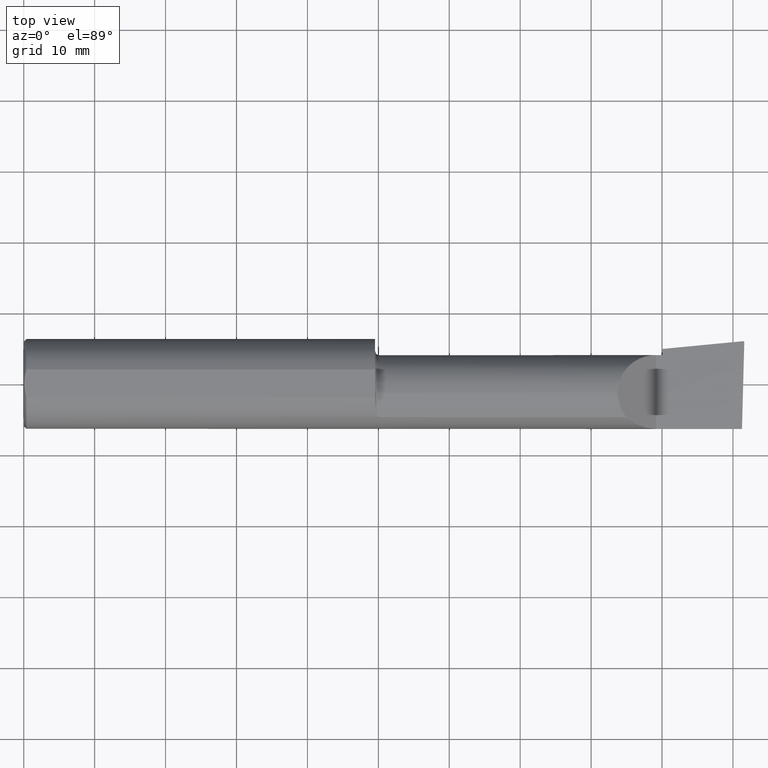
[diagram: clean part render]
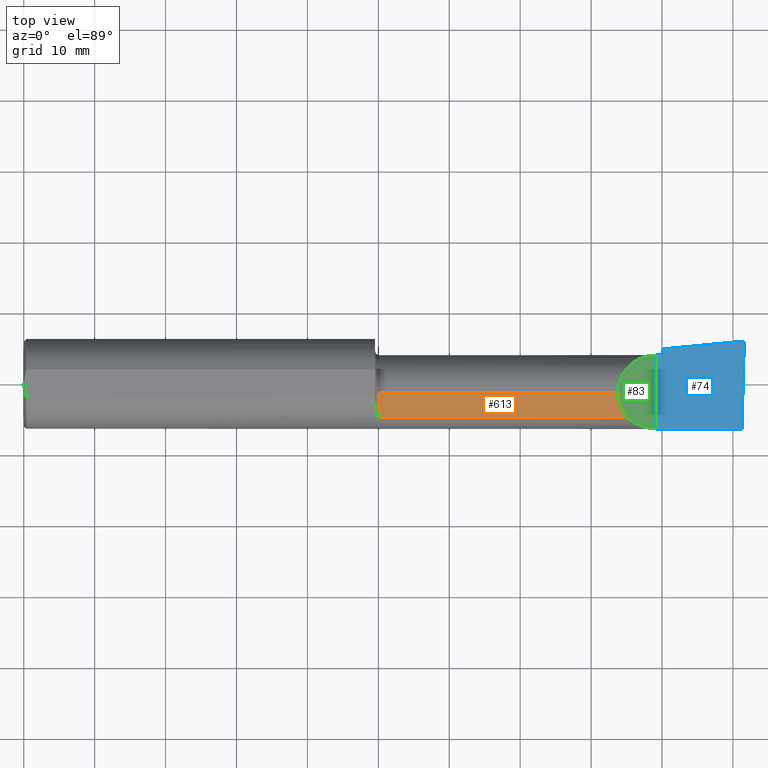
[diagram: same view with three faces highlighted in distinct colors, each labeled with its STEP entity id]
A machine part, top view with three faces highlighted in distinct colors.
Their STEP definitions:

[orange] entity #613 — the highlighted cylindrical surface (partial cylindrical patch) has radius 5.414 mm, axis along (-1, -0, -0).
#5 = CARTESIAN_POINT ( 'NONE',  ( 3.296849999999996061, -0.1021668565906576620, 0.2131499999999999229 ) ) ;
#14 = AXIS2_PLACEMENT_3D ( 'NONE', #620, #822, #345 ) ;
#33 = VERTEX_POINT ( 'NONE', #251 ) ;
#64 = CARTESIAN_POINT ( 'NONE',  ( 0.000000000000000000, -0.05299999999999998462, 0.2131499999999999506 ) ) ;
#75 = ORIENTED_EDGE ( 'NONE', *, *, #604, .F. ) ;
#140 = VECTOR ( 'NONE', #403, 39.37007874015748143 ) ;
#148 = DIRECTION ( 'NONE',  ( 0.000000000000000000, 0.000000000000000000, 1.000000000000000000 ) ) ;
#162 = ORIENTED_EDGE ( 'NONE', *, *, #337, .T. ) ;
#206 = VERTEX_POINT ( 'NONE', #731 ) ;
#232 = EDGE_LOOP ( 'NONE', ( #833, #420, #75, #162 ) ) ;
#251 = CARTESIAN_POINT ( 'NONE',  ( 1.975000000000000089, -0.05299999999999998462, 0.2131499999999997841 ) ) ;
#266 = CARTESIAN_POINT ( 'NONE',  ( 1.975000000000000089, -0.1868028301886799081, 0.1659208399614080509 ) ) ;
#270 = LINE ( 'NONE', #64, #140 ) ;
#278 = CARTESIAN_POINT ( 'NONE',  ( 3.296849999999997394, -0.05299999999999998462, 0.2131499999999999506 ) ) ;
#279 = VERTEX_POINT ( 'NONE', #266 ) ;
#285 = CARTESIAN_POINT ( 'NONE',  ( 1.975000000000000089, -0.05299999999999998462, 0.000000000000000000 ) ) ;
#317 = EDGE_CURVE ( 'NONE', #699, #33, #270, .T. ) ;
#337 = EDGE_CURVE ( 'NONE', #279, #206, #610, .T. ) ;
#341 = AXIS2_PLACEMENT_3D ( 'NONE', #285, #814, #148 ) ;
#345 = DIRECTION ( 'NONE',  ( 0.000000000000000000, 0.000000000000000000, 1.000000000000000000 ) ) ;
#386 = DIRECTION ( 'NONE',  ( 1.000000000000000000, 0.000000000000000000, 0.000000000000000000 ) ) ;
#403 = DIRECTION ( 'NONE',  ( -1.000000000000000000, -0.000000000000000000, -0.000000000000000000 ) ) ;
#418 = CIRCLE ( 'NONE', #341, 0.2131499999999997841 ) ;
#420 = ORIENTED_EDGE ( 'NONE', *, *, #317, .T. ) ;
#540 = CARTESIAN_POINT ( 'NONE',  ( 3.296849999999997394, -0.05299999999999998462, 0.2131499999999999506 ) ) ;
#556 = CYLINDRICAL_SURFACE ( 'NONE', #14, 0.2131499999999999506 ) ;
#571 = EDGE_CURVE ( 'NONE', #206, #699, #796, .T. ) ;
#604 = EDGE_CURVE ( 'NONE', #279, #33, #418, .T. ) ;
#607 = CARTESIAN_POINT ( 'NONE',  ( 3.344079160038590626, -0.1868028301886808795, 0.1659208399614073015 ) ) ;
#610 = LINE ( 'NONE', #782, #634 ) ;
#613 = ADVANCED_FACE ( 'NONE', ( #623 ), #556, .T. ) ;
#620 = CARTESIAN_POINT ( 'NONE',  ( 0.000000000000000000, -0.05299999999999998462, 0.000000000000000000 ) ) ;
#623 = FACE_OUTER_BOUND ( 'NONE', #232, .T. ) ;
#634 = VECTOR ( 'NONE', #386, 39.37007874015748143 ) ;
#661 = CARTESIAN_POINT ( 'NONE',  ( 3.313215146136122335, -0.1485302233682071760, 0.1967848538638751477 ) ) ;
#699 = VERTEX_POINT ( 'NONE', #278 ) ;
#731 = CARTESIAN_POINT ( 'NONE',  ( 3.344079160038590626, -0.1868028301886808795, 0.1659208399614073015 ) ) ;
#782 = CARTESIAN_POINT ( 'NONE',  ( 2.760000000000000231, -0.1868028301886794917, 0.1659208399614086338 ) ) ;
#796 =( BOUNDED_CURVE ( )  B_SPLINE_CURVE ( 3, ( #607, #661, #5, #540 ),
 .UNSPECIFIED., .F., .F. ) 
 B_SPLINE_CURVE_WITH_KNOTS ( ( 4, 4 ),
 ( 5.604538515477337945, 6.283185307179586232 ),
 .UNSPECIFIED. ) 
 CURVE ( )  GEOMETRIC_REPRESENTATION_ITEM ( )  RATIONAL_B_SPLINE_CURVE ( ( 1.000000000000000000, 0.9619867256453012994, 0.9619867256453012994, 1.000000000000000000 ) ) 
 REPRESENTATION_ITEM ( '' )  );
#814 = DIRECTION ( 'NONE',  ( -1.000000000000000000, -0.000000000000000000, -0.000000000000000000 ) ) ;
#822 = DIRECTION ( 'NONE',  ( -1.000000000000000000, -0.000000000000000000, -0.000000000000000000 ) ) ;
#833 = ORIENTED_EDGE ( 'NONE', *, *, #571, .T. ) ;

[blue] entity #74 — the highlighted planar face has unit normal (-0, 0, -1).
#4 = VECTOR ( 'NONE', #174, 39.37007874015748143 ) ;
#15 = CARTESIAN_POINT ( 'NONE',  ( 7.089685198749692867E-32, 0.1601499999999999313, 4.685946446163635703E-16 ) ) ;
#23 = CARTESIAN_POINT ( 'NONE',  ( 3.992906680581888690, 0.2374669910246689497, -1.355192034299833405E-16 ) ) ;
#39 = CARTESIAN_POINT ( 'NONE',  ( 4.000000000000000000, -0.2500000000000000555, -1.365923996832131609E-16 ) ) ;
#74 = ADVANCED_FACE ( 'NONE', ( #718 ), #321, .F. ) ;
#84 = CARTESIAN_POINT ( 'NONE',  ( 3.993108609909219009, 0.2374864346074007926, -1.365705356632281459E-16 ) ) ;
#86 = VERTEX_POINT ( 'NONE', #654 ) ;
#98 = VERTEX_POINT ( 'NONE', #585 ) ;
#108 = DIRECTION ( 'NONE',  ( -1.512967610748942321E-16, 0.000000000000000000, -1.000000000000000000 ) ) ;
#131 =( BOUNDED_CURVE ( )  B_SPLINE_CURVE ( 3, ( #867, #134, #469, #741 ),
 .UNSPECIFIED., .F., .F. ) 
 B_SPLINE_CURVE_WITH_KNOTS ( ( 4, 4 ),
 ( 1.953092279228448858, 3.511516179717750763 ),
 .UNSPECIFIED. ) 
 CURVE ( )  GEOMETRIC_REPRESENTATION_ITEM ( )  RATIONAL_B_SPLINE_CURVE ( ( 1.000000000000000000, 0.8076450242550308189, 0.8076450242550308189, 1.000000000000000000 ) ) 
 REPRESENTATION_ITEM ( '' )  );
#133 = CARTESIAN_POINT ( 'NONE',  ( 3.509999999999999787, 0.1601499999999999035, -6.245698675651499853E-17 ) ) ;
#134 = CARTESIAN_POINT ( 'NONE',  ( 3.999910038027500558, 0.2347144908750976589, -1.375995697082077329E-16 ) ) ;
#136 = EDGE_CURVE ( 'NONE', #155, #86, #131, .T. ) ;
#145 = EDGE_LOOP ( 'NONE', ( #431, #421, #628, #826, #290, #288, #765, #558 ) ) ;
#155 = VERTEX_POINT ( 'NONE', #183 ) ;
#174 = DIRECTION ( 'NONE',  ( 0.9953961983671787417, 0.09584575252022452252, -1.506002207992170530E-16 ) ) ;
#183 = CARTESIAN_POINT ( 'NONE',  ( 3.999806390372775411, 0.2307563466314205836, -1.365348382555914988E-16 ) ) ;
#184 = CARTESIAN_POINT ( 'NONE',  ( 3.987226101480002782, -0.2496655036952227513, -1.346597502108382365E-16 ) ) ;
#185 = VECTOR ( 'NONE', #367, 39.37007874015748143 ) ;
#194 = CARTESIAN_POINT ( 'NONE',  ( 3.987221270274236229, -0.2498499999999999888, -1.346590301211604859E-16 ) ) ;
#222 = CARTESIAN_POINT ( 'NONE',  ( 3.993310817358672438, 0.2374961668063717557, -1.366011289953956554E-16 ) ) ;
#234 = CARTESIAN_POINT ( 'NONE',  ( 3.544999999999999929, -0.2500000000000000555, -6.775237339413629936E-17 ) ) ;
#253 = DIRECTION ( 'NONE',  ( 0.02617694830786353177, 0.9996573249755575929, -3.901665791506465006E-18 ) ) ;
#283 = LINE ( 'NONE', #15, #759 ) ;
#288 = ORIENTED_EDGE ( 'NONE', *, *, #727, .F. ) ;
#290 = ORIENTED_EDGE ( 'NONE', *, *, #813, .F. ) ;
#295 = VERTEX_POINT ( 'NONE', #133 ) ;
#321 = PLANE ( 'NONE',  #611 ) ;
#367 = DIRECTION ( 'NONE',  ( -1.000000000000000000, -0.000000000000000000, -0.000000000000000000 ) ) ;
#373 = CARTESIAN_POINT ( 'NONE',  ( 7.089685198749692867E-32, -0.2498499999999999610, 4.685946446163635703E-16 ) ) ;
#405 = EDGE_CURVE ( 'NONE', #783, #753, #773, .T. ) ;
#414 = EDGE_CURVE ( 'NONE', #513, #155, #581, .T. ) ;
#419 = CARTESIAN_POINT ( 'NONE',  ( 3.993512870449309915, 0.2374961668063717279, -1.365923996832131609E-16 ) ) ;
#421 = ORIENTED_EDGE ( 'NONE', *, *, #136, .T. ) ;
#425 = CARTESIAN_POINT ( 'NONE',  ( 3.509999999999999787, -0.2500000000000000555, -6.245698675651499853E-17 ) ) ;
#431 = ORIENTED_EDGE ( 'NONE', *, *, #414, .T. ) ;
#439 = EDGE_CURVE ( 'NONE', #513, #823, #845, .T. ) ;
#450 = CARTESIAN_POINT ( 'NONE',  ( 0.9762916401177922365, -0.05299999999999998462, 3.208848816020454083E-16 ) ) ;
#469 = CARTESIAN_POINT ( 'NONE',  ( 3.997312560284819405, 0.2374961668063720333, -1.372065797387761951E-16 ) ) ;
#479 =( BOUNDED_CURVE ( )  B_SPLINE_CURVE ( 3, ( #419, #222, #84, #746 ),
 .UNSPECIFIED., .F., .T. ) 
 B_SPLINE_CURVE_WITH_KNOTS ( ( 4, 4 ),
 ( 3.511516179717750763, 3.604018710826266680 ),
 .UNSPECIFIED. ) 
 CURVE ( )  GEOMETRIC_REPRESENTATION_ITEM ( )  RATIONAL_B_SPLINE_CURVE ( ( 1.000000000000000000, 0.9992870672494020834, 0.9992870672494020834, 1.000000000000000000 ) ) 
 REPRESENTATION_ITEM ( '' )  );
#490 = LINE ( 'NONE', #425, #668 ) ;
#513 = VERTEX_POINT ( 'NONE', #194 ) ;
#545 = VECTOR ( 'NONE', #717, 39.37007874015748143 ) ;
#553 = DIRECTION ( 'NONE',  ( 1.000000000000000000, 0.000000000000000000, 0.000000000000000000 ) ) ;
#558 = ORIENTED_EDGE ( 'NONE', *, *, #439, .F. ) ;
#578 = LINE ( 'NONE', #234, #545 ) ;
#581 = LINE ( 'NONE', #184, #828 ) ;
#585 = CARTESIAN_POINT ( 'NONE',  ( 3.544999999999999929, 0.1601500000000001256, 4.685946446163640633E-16 ) ) ;
#611 = AXIS2_PLACEMENT_3D ( 'NONE', #39, #108, #857 ) ;
#627 = EDGE_CURVE ( 'NONE', #86, #753, #479, .T. ) ;
#628 = ORIENTED_EDGE ( 'NONE', *, *, #627, .T. ) ;
#652 = CARTESIAN_POINT ( 'NONE',  ( 3.544999999999999929, 0.1943384830701263555, 4.685947727122480717E-16 ) ) ;
#654 = CARTESIAN_POINT ( 'NONE',  ( 3.993512870449309915, 0.2374961668063717279, -1.365923996832131609E-16 ) ) ;
#668 = VECTOR ( 'NONE', #762, 39.37007874015748143 ) ;
#684 = EDGE_CURVE ( 'NONE', #823, #295, #490, .T. ) ;
#701 = CARTESIAN_POINT ( 'NONE',  ( 3.509999999999999787, -0.2498499999999999610, -6.245698675651499853E-17 ) ) ;
#717 = DIRECTION ( 'NONE',  ( 0.000000000000000000, 1.000000000000000000, 0.000000000000000000 ) ) ;
#718 = FACE_OUTER_BOUND ( 'NONE', #145, .T. ) ;
#727 = EDGE_CURVE ( 'NONE', #295, #98, #283, .T. ) ;
#741 = CARTESIAN_POINT ( 'NONE',  ( 3.993512870449309915, 0.2374961668063717279, -1.365923996832131609E-16 ) ) ;
#746 = CARTESIAN_POINT ( 'NONE',  ( 3.992906680581888690, 0.2374669910246689497, -1.355192034299833405E-16 ) ) ;
#753 = VERTEX_POINT ( 'NONE', #23 ) ;
#759 = VECTOR ( 'NONE', #553, 39.37007874015748143 ) ;
#762 = DIRECTION ( 'NONE',  ( -0.000000000000000000, 1.000000000000000000, -0.000000000000000000 ) ) ;
#765 = ORIENTED_EDGE ( 'NONE', *, *, #684, .F. ) ;
#773 = LINE ( 'NONE', #450, #4 ) ;
#783 = VERTEX_POINT ( 'NONE', #652 ) ;
#813 = EDGE_CURVE ( 'NONE', #98, #783, #578, .T. ) ;
#823 = VERTEX_POINT ( 'NONE', #701 ) ;
#826 = ORIENTED_EDGE ( 'NONE', *, *, #405, .F. ) ;
#828 = VECTOR ( 'NONE', #253, 39.37007874015748143 ) ;
#845 = LINE ( 'NONE', #373, #185 ) ;
#857 = DIRECTION ( 'NONE',  ( -1.000000000000000000, 0.000000000000000000, 1.512967610748942321E-16 ) ) ;
#867 = CARTESIAN_POINT ( 'NONE',  ( 3.999806390372775411, 0.2307563466314205836, -1.365348382555914988E-16 ) ) ;

[green] entity #83 — the highlighted planar face has unit normal (-0.7071, 0, -0.7071).
#5 = CARTESIAN_POINT ( 'NONE',  ( 3.296849999999996061, -0.1021668565906576620, 0.2131499999999999229 ) ) ;
#35 = CARTESIAN_POINT ( 'NONE',  ( 3.448145753305724259, -0.2498500000000001275, 0.06185424669427388999 ) ) ;
#82 = EDGE_LOOP ( 'NONE', ( #151, #500, #630, #844 ) ) ;
#83 = ADVANCED_FACE ( 'NONE', ( #115 ), #257, .F. ) ;
#115 = FACE_OUTER_BOUND ( 'NONE', #82, .T. ) ;
#133 = CARTESIAN_POINT ( 'NONE',  ( 3.509999999999999787, 0.1601499999999999035, -6.245698675651499853E-17 ) ) ;
#151 = ORIENTED_EDGE ( 'NONE', *, *, #571, .F. ) ;
#206 = VERTEX_POINT ( 'NONE', #731 ) ;
#228 = EDGE_CURVE ( 'NONE', #699, #295, #702, .T. ) ;
#257 = PLANE ( 'NONE',  #383 ) ;
#267 = CARTESIAN_POINT ( 'NONE',  ( 3.509999999999999787, 0.1601499999999999035, -6.245698675651499853E-17 ) ) ;
#278 = CARTESIAN_POINT ( 'NONE',  ( 3.296849999999997394, -0.05299999999999998462, 0.2131499999999999506 ) ) ;
#295 = VERTEX_POINT ( 'NONE', #133 ) ;
#316 = CARTESIAN_POINT ( 'NONE',  ( 3.509999999999999787, -0.2500000000000000555, -6.245698675651499853E-17 ) ) ;
#383 = AXIS2_PLACEMENT_3D ( 'NONE', #316, #455, #728 ) ;
#422 =( BOUNDED_CURVE ( )  B_SPLINE_CURVE ( 3, ( #645, #35, #839, #656 ),
 .UNSPECIFIED., .F., .F. ) 
 B_SPLINE_CURVE_WITH_KNOTS ( ( 4, 4 ),
 ( 4.712388980384687898, 5.438654041019563401 ),
 .UNSPECIFIED. ) 
 CURVE ( )  GEOMETRIC_REPRESENTATION_ITEM ( )  RATIONAL_B_SPLINE_CURVE ( ( 1.000000000000000000, 0.9565258159411005323, 0.9565258159411005323, 1.000000000000000000 ) ) 
 REPRESENTATION_ITEM ( '' )  );
#425 = CARTESIAN_POINT ( 'NONE',  ( 3.509999999999999787, -0.2500000000000000555, -6.245698675651499853E-17 ) ) ;
#444 = EDGE_CURVE ( 'NONE', #823, #206, #422, .T. ) ;
#455 = DIRECTION ( 'NONE',  ( -0.7071067811865439090, 0.000000000000000000, -0.7071067811865511255 ) ) ;
#490 = LINE ( 'NONE', #425, #668 ) ;
#500 = ORIENTED_EDGE ( 'NONE', *, *, #444, .F. ) ;
#534 = CARTESIAN_POINT ( 'NONE',  ( 3.296849999999997394, -0.05299999999999998462, 0.2131499999999999506 ) ) ;
#540 = CARTESIAN_POINT ( 'NONE',  ( 3.296849999999997394, -0.05299999999999998462, 0.2131499999999999506 ) ) ;
#571 = EDGE_CURVE ( 'NONE', #206, #699, #796, .T. ) ;
#607 = CARTESIAN_POINT ( 'NONE',  ( 3.344079160038590626, -0.1868028301886808795, 0.1659208399614073015 ) ) ;
#630 = ORIENTED_EDGE ( 'NONE', *, *, #684, .T. ) ;
#645 = CARTESIAN_POINT ( 'NONE',  ( 3.509999999999999787, -0.2498499999999999610, -6.245698675651499853E-17 ) ) ;
#656 = CARTESIAN_POINT ( 'NONE',  ( 3.344079160038590626, -0.1868028301886808795, 0.1659208399614073015 ) ) ;
#661 = CARTESIAN_POINT ( 'NONE',  ( 3.313215146136122335, -0.1485302233682071760, 0.1967848538638751477 ) ) ;
#668 = VECTOR ( 'NONE', #762, 39.37007874015748143 ) ;
#684 = EDGE_CURVE ( 'NONE', #823, #295, #490, .T. ) ;
#699 = VERTEX_POINT ( 'NONE', #278 ) ;
#701 = CARTESIAN_POINT ( 'NONE',  ( 3.509999999999999787, -0.2498499999999999610, -6.245698675651499853E-17 ) ) ;
#702 =( BOUNDED_CURVE ( )  B_SPLINE_CURVE ( 3, ( #534, #805, #864, #267 ),
 .UNSPECIFIED., .F., .F. ) 
 B_SPLINE_CURVE_WITH_KNOTS ( ( 4, 4 ),
 ( 0.000000000000000000, 1.570796326794898112 ),
 .UNSPECIFIED. ) 
 CURVE ( )  GEOMETRIC_REPRESENTATION_ITEM ( )  RATIONAL_B_SPLINE_CURVE ( ( 1.000000000000000000, 0.8047378541243646044, 0.8047378541243646044, 1.000000000000000000 ) ) 
 REPRESENTATION_ITEM ( '' )  );
#728 = DIRECTION ( 'NONE',  ( -0.7071067811865511255, 0.000000000000000000, 0.7071067811865439090 ) ) ;
#731 = CARTESIAN_POINT ( 'NONE',  ( 3.344079160038590626, -0.1868028301886808795, 0.1659208399614073015 ) ) ;
#762 = DIRECTION ( 'NONE',  ( -0.000000000000000000, 1.000000000000000000, -0.000000000000000000 ) ) ;
#796 =( BOUNDED_CURVE ( )  B_SPLINE_CURVE ( 3, ( #607, #661, #5, #540 ),
 .UNSPECIFIED., .F., .F. ) 
 B_SPLINE_CURVE_WITH_KNOTS ( ( 4, 4 ),
 ( 5.604538515477337945, 6.283185307179586232 ),
 .UNSPECIFIED. ) 
 CURVE ( )  GEOMETRIC_REPRESENTATION_ITEM ( )  RATIONAL_B_SPLINE_CURVE ( ( 1.000000000000000000, 0.9619867256453012994, 0.9619867256453012994, 1.000000000000000000 ) ) 
 REPRESENTATION_ITEM ( '' )  );
#805 = CARTESIAN_POINT ( 'NONE',  ( 3.296849999999997394, 0.07186037918017494641, 0.2131499999999999229 ) ) ;
#823 = VERTEX_POINT ( 'NONE', #701 ) ;
#839 = CARTESIAN_POINT ( 'NONE',  ( 3.390325100969866945, -0.2278791102234780930, 0.1196748990301311488 ) ) ;
#844 = ORIENTED_EDGE ( 'NONE', *, *, #228, .F. ) ;
#864 = CARTESIAN_POINT ( 'NONE',  ( 3.385139620819825446, 0.1601500000000001811, 0.1248603791801746327 ) ) ;